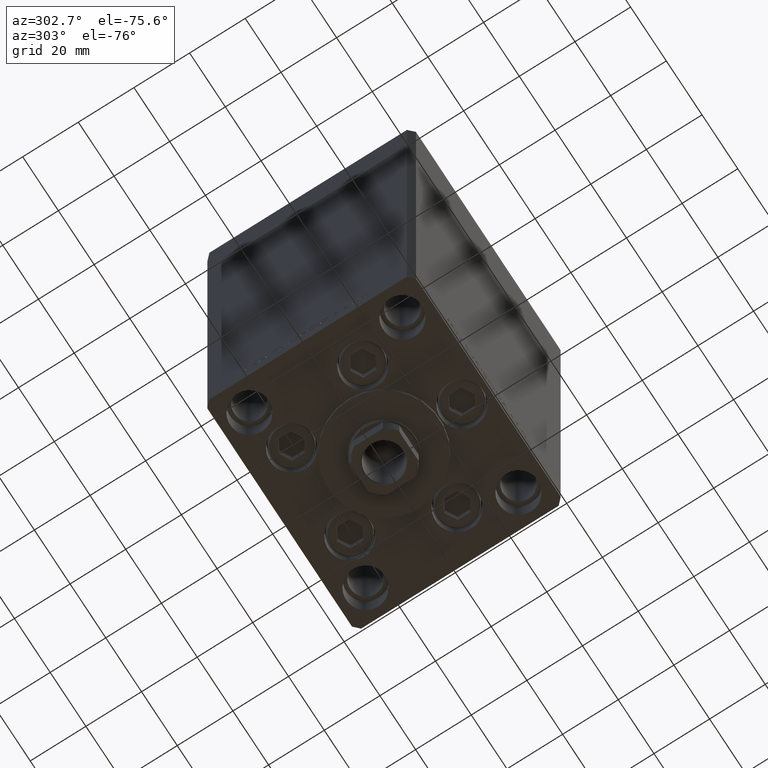
[diagram: clean part render]
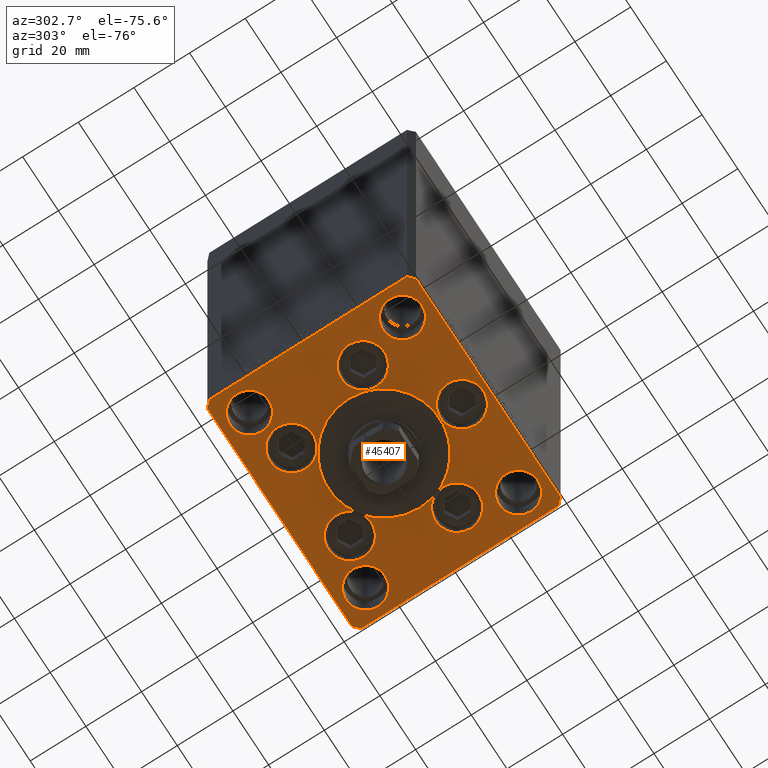
[diagram: same view with one face highlighted and labeled with its STEP entity id]
A machine part, auxiliary view. The second image highlights one B-rep face of the part: STEP entity #45407.
In plain terms, the highlighted planar face has unit normal (0, 0, -1).
Its self-contained STEP definition (entity closure, byte-faithful):
#16 = AXIS2_PLACEMENT_3D ( 'NONE', #8283, #38224, #37982 ) ;
#114 = VERTEX_POINT ( 'NONE', #25734 ) ;
#315 = ORIENTED_EDGE ( 'NONE', *, *, #40115, .T. ) ;
#346 = AXIS2_PLACEMENT_3D ( 'NONE', #21524, #39587, #13360 ) ;
#954 = FACE_BOUND ( 'NONE', #44310, .T. ) ;
#1336 = ORIENTED_EDGE ( 'NONE', *, *, #4752, .T. ) ;
#1346 = DIRECTION ( 'NONE',  ( 1.000000000000000000, 0.000000000000000000, 0.000000000000000000 ) ) ;
#1486 = VERTEX_POINT ( 'NONE', #16601 ) ;
#1607 = CARTESIAN_POINT ( 'NONE',  ( -40.50000000000000711, -37.50000000000003553, 0.000000000000000000 ) ) ;
#1820 = VERTEX_POINT ( 'NONE', #20006 ) ;
#2027 = DIRECTION ( 'NONE',  ( 0.000000000000000000, 0.000000000000000000, 1.000000000000000000 ) ) ;
#2120 = EDGE_CURVE ( 'NONE', #1820, #32465, #3324, .T. ) ;
#2234 = DIRECTION ( 'NONE',  ( 1.000000000000000000, 0.000000000000000000, 0.000000000000000000 ) ) ;
#2313 = CARTESIAN_POINT ( 'NONE',  ( 26.39865316429777664, -9.333333333333330373, 0.000000000000000000 ) ) ;
#2559 = DIRECTION ( 'NONE',  ( 0.000000000000000000, 0.000000000000000000, 1.000000000000000000 ) ) ;
#2766 = EDGE_CURVE ( 'NONE', #27767, #1486, #47745, .T. ) ;
#2904 = CARTESIAN_POINT ( 'NONE',  ( 40.50000000000000711, 37.50000000000000711, 0.000000000000000000 ) ) ;
#2972 = CARTESIAN_POINT ( 'NONE',  ( 7.750000000000000000, -28.00000000000000000, 0.000000000000000000 ) ) ;
#2993 = ORIENTED_EDGE ( 'NONE', *, *, #5865, .F. ) ;
#3050 = CARTESIAN_POINT ( 'NONE',  ( -16.32291334290544071, 22.74999999999999289, 0.000000000000000000 ) ) ;
#3070 = ORIENTED_EDGE ( 'NONE', *, *, #37310, .F. ) ;
#3206 = AXIS2_PLACEMENT_3D ( 'NONE', #16943, #32039, #47109 ) ;
#3324 = CIRCLE ( 'NONE', #29416, 20.00000000000000000 ) ;
#3429 = AXIS2_PLACEMENT_3D ( 'NONE', #47912, #28399, #17498 ) ;
#3432 = ORIENTED_EDGE ( 'NONE', *, *, #20231, .F. ) ;
#3438 = CIRCLE ( 'NONE', #22393, 7.750000000000000000 ) ;
#3773 = DIRECTION ( 'NONE',  ( 1.000000000000000000, 0.000000000000000000, 0.000000000000000000 ) ) ;
#3826 = CARTESIAN_POINT ( 'NONE',  ( -40.50000000000000711, -37.50000000000003553, 0.000000000000000000 ) ) ;
#4007 = CIRCLE ( 'NONE', #32447, 6.999999999999999112 ) ;
#4023 = DIRECTION ( 'NONE',  ( 1.000000000000000000, 0.000000000000000000, 0.000000000000000000 ) ) ;
#4265 = DIRECTION ( 'NONE',  ( 0.000000000000000000, 0.000000000000000000, 1.000000000000000000 ) ) ;
#4665 = FACE_BOUND ( 'NONE', #5611, .T. ) ;
#4752 = EDGE_CURVE ( 'NONE', #16514, #16645, #39854, .T. ) ;
#5337 = CARTESIAN_POINT ( 'NONE',  ( 42.50000000000001421, 35.50000000000002132, 0.000000000000000000 ) ) ;
#5611 = EDGE_LOOP ( 'NONE', ( #39204, #44866 ) ) ;
#5794 = CIRCLE ( 'NONE', #31979, 7.750000000000000000 ) ;
#5865 = EDGE_CURVE ( 'NONE', #22719, #114, #10524, .T. ) ;
#6660 = CARTESIAN_POINT ( 'NONE',  ( -24.07291334290544071, 22.74999999999999289, 0.000000000000000000 ) ) ;
#6854 = ORIENTED_EDGE ( 'NONE', *, *, #33197, .F. ) ;
#6952 = AXIS2_PLACEMENT_3D ( 'NONE', #2313, #2559, #32992 ) ;
#7374 = VERTEX_POINT ( 'NONE', #34662 ) ;
#7580 = CARTESIAN_POINT ( 'NONE',  ( 16.32291334290544071, 22.74999999999999289, 0.000000000000000000 ) ) ;
#7675 = EDGE_LOOP ( 'NONE', ( #26797, #2993 ) ) ;
#7921 = VERTEX_POINT ( 'NONE', #47962 ) ;
#7975 = DIRECTION ( 'NONE',  ( 1.000000000000000000, 0.000000000000000000, 0.000000000000000000 ) ) ;
#8159 = ORIENTED_EDGE ( 'NONE', *, *, #12350, .F. ) ;
#8283 = CARTESIAN_POINT ( 'NONE',  ( -32.50000000000000000, -27.50000000000000355, 0.000000000000000000 ) ) ;
#8290 = CIRCLE ( 'NONE', #47818, 20.00000000000000000 ) ;
#8522 = AXIS2_PLACEMENT_3D ( 'NONE', #9243, #20872, #9735 ) ;
#8612 = DIRECTION ( 'NONE',  ( -0.000000000000000000, 0.000000000000000000, 1.000000000000000000 ) ) ;
#8860 = VECTOR ( 'NONE', #37339, 1000.000000000000114 ) ;
#9009 = DIRECTION ( 'NONE',  ( 0.000000000000000000, 0.000000000000000000, 1.000000000000000000 ) ) ;
#9164 = AXIS2_PLACEMENT_3D ( 'NONE', #17179, #9009, #1346 ) ;
#9243 = CARTESIAN_POINT ( 'NONE',  ( 26.39865316429777664, -9.333333333333330373, 0.000000000000000000 ) ) ;
#9399 = CIRCLE ( 'NONE', #3206, 6.999999999999999112 ) ;
#9735 = DIRECTION ( 'NONE',  ( 1.000000000000000000, 0.000000000000000000, 0.000000000000000000 ) ) ;
#10139 = DIRECTION ( 'NONE',  ( 0.000000000000000000, 0.000000000000000000, 1.000000000000000000 ) ) ;
#10242 = ORIENTED_EDGE ( 'NONE', *, *, #2766, .T. ) ;
#10245 = ORIENTED_EDGE ( 'NONE', *, *, #30346, .F. ) ;
#10524 = CIRCLE ( 'NONE', #3429, 7.750000000000000000 ) ;
#10705 = ORIENTED_EDGE ( 'NONE', *, *, #2120, .F. ) ;
#11004 = CARTESIAN_POINT ( 'NONE',  ( 25.50000000000000355, 27.49999999999999645, 0.000000000000000000 ) ) ;
#11465 = DIRECTION ( 'NONE',  ( 9.773090005503134168E-17, -1.000000000000000000, 0.000000000000000000 ) ) ;
#11625 = VERTEX_POINT ( 'NONE', #34788 ) ;
#11667 = CARTESIAN_POINT ( 'NONE',  ( 0.000000000000000000, -28.00000000000000000, 0.000000000000000000 ) ) ;
#11730 = DIRECTION ( 'NONE',  ( 1.000000000000000000, 1.370645709413773283E-15, 0.000000000000000000 ) ) ;
#11743 = LINE ( 'NONE', #41943, #25168 ) ;
#12081 = FACE_BOUND ( 'NONE', #13472, .T. ) ;
#12154 = DIRECTION ( 'NONE',  ( 0.000000000000000000, 0.000000000000000000, 1.000000000000000000 ) ) ;
#12326 = PLANE ( 'NONE',  #27951 ) ;
#12344 = EDGE_CURVE ( 'NONE', #47251, #12542, #39086, .T. ) ;
#12350 = EDGE_CURVE ( 'NONE', #41710, #11625, #28006, .T. ) ;
#12542 = VERTEX_POINT ( 'NONE', #32376 ) ;
#12769 = VERTEX_POINT ( 'NONE', #39656 ) ;
#13160 = DIRECTION ( 'NONE',  ( 1.000000000000000000, 0.000000000000000000, 0.000000000000000000 ) ) ;
#13360 = DIRECTION ( 'NONE',  ( 1.000000000000000000, 0.000000000000000000, 0.000000000000000000 ) ) ;
#13472 = EDGE_LOOP ( 'NONE', ( #34398, #10705 ) ) ;
#13513 = VERTEX_POINT ( 'NONE', #25325 ) ;
#13680 = EDGE_CURVE ( 'NONE', #114, #22719, #20936, .T. ) ;
#13697 = EDGE_LOOP ( 'NONE', ( #48076, #23080 ) ) ;
#13739 = EDGE_CURVE ( 'NONE', #32465, #1820, #8290, .T. ) ;
#14299 = EDGE_CURVE ( 'NONE', #7921, #24037, #18270, .T. ) ;
#14312 = DIRECTION ( 'NONE',  ( 1.000000000000000000, 0.000000000000000000, 0.000000000000000000 ) ) ;
#14365 = EDGE_LOOP ( 'NONE', ( #47401, #8159 ) ) ;
#15220 = EDGE_CURVE ( 'NONE', #39130, #25398, #47847, .T. ) ;
#15468 = VECTOR ( 'NONE', #25940, 1000.000000000000000 ) ;
#15807 = EDGE_CURVE ( 'NONE', #38482, #38467, #40767, .T. ) ;
#16046 = FACE_BOUND ( 'NONE', #28556, .T. ) ;
#16514 = VERTEX_POINT ( 'NONE', #2904 ) ;
#16601 = CARTESIAN_POINT ( 'NONE',  ( 42.50000000000000711, -35.49999999999992895, 0.000000000000000000 ) ) ;
#16613 = CIRCLE ( 'NONE', #29280, 6.999999999999999112 ) ;
#16645 = VERTEX_POINT ( 'NONE', #25537 ) ;
#16729 = LINE ( 'NONE', #5337, #23449 ) ;
#16915 = ORIENTED_EDGE ( 'NONE', *, *, #24177, .T. ) ;
#16943 = CARTESIAN_POINT ( 'NONE',  ( -32.50000000000000000, 27.50000000000000711, 0.000000000000000000 ) ) ;
#17179 = CARTESIAN_POINT ( 'NONE',  ( 0.000000000000000000, -28.00000000000000000, 0.000000000000000000 ) ) ;
#17498 = DIRECTION ( 'NONE',  ( 1.000000000000000000, 0.000000000000000000, 0.000000000000000000 ) ) ;
#17574 = DIRECTION ( 'NONE',  ( 1.000000000000000000, 0.000000000000000000, 0.000000000000000000 ) ) ;
#17946 = CARTESIAN_POINT ( 'NONE',  ( -20.00000000000000000, -6.938893903907228378E-15, 0.000000000000000000 ) ) ;
#17950 = CARTESIAN_POINT ( 'NONE',  ( -39.50000000000000000, 27.50000000000000711, 0.000000000000000000 ) ) ;
#18017 = VECTOR ( 'NONE', #25994, 1000.000000000000000 ) ;
#18021 = VERTEX_POINT ( 'NONE', #41993 ) ;
#18091 = EDGE_CURVE ( 'NONE', #25384, #16514, #16729, .T. ) ;
#18270 = LINE ( 'NONE', #40792, #15468 ) ;
#18566 = ORIENTED_EDGE ( 'NONE', *, *, #48376, .F. ) ;
#18892 = VERTEX_POINT ( 'NONE', #17950 ) ;
#19351 = AXIS2_PLACEMENT_3D ( 'NONE', #3050, #4265, #7975 ) ;
#19360 = CARTESIAN_POINT ( 'NONE',  ( 0.000000000000000000, -6.938893903907228378E-15, 0.000000000000000000 ) ) ;
#19660 = CARTESIAN_POINT ( 'NONE',  ( -32.50000000000000000, -27.50000000000000355, 0.000000000000000000 ) ) ;
#19754 = FACE_BOUND ( 'NONE', #14365, .T. ) ;
#19942 = ORIENTED_EDGE ( 'NONE', *, *, #28442, .T. ) ;
#19953 = DIRECTION ( 'NONE',  ( 0.000000000000000000, 0.000000000000000000, 1.000000000000000000 ) ) ;
#19983 = VECTOR ( 'NONE', #28490, 1000.000000000000000 ) ;
#19994 = DIRECTION ( 'NONE',  ( 1.000000000000000000, 0.000000000000000000, 0.000000000000000000 ) ) ;
#20006 = CARTESIAN_POINT ( 'NONE',  ( 20.00000000000000000, -4.489600305612522259E-15, 0.000000000000000000 ) ) ;
#20231 = EDGE_CURVE ( 'NONE', #12769, #13513, #46425, .T. ) ;
#20752 = EDGE_CURVE ( 'NONE', #1486, #25384, #29959, .T. ) ;
#20872 = DIRECTION ( 'NONE',  ( 0.000000000000000000, 0.000000000000000000, 1.000000000000000000 ) ) ;
#20880 = VERTEX_POINT ( 'NONE', #40474 ) ;
#20936 = CIRCLE ( 'NONE', #19351, 7.750000000000000000 ) ;
#21046 = CARTESIAN_POINT ( 'NONE',  ( 40.50000000000000711, 37.50000000000000711, 0.000000000000000000 ) ) ;
#21144 = ORIENTED_EDGE ( 'NONE', *, *, #36920, .F. ) ;
#21177 = EDGE_CURVE ( 'NONE', #13513, #12769, #29112, .T. ) ;
#21248 = AXIS2_PLACEMENT_3D ( 'NONE', #7580, #35434, #33802 ) ;
#21299 = ORIENTED_EDGE ( 'NONE', *, *, #36518, .F. ) ;
#21524 = CARTESIAN_POINT ( 'NONE',  ( 32.50000000000000000, 27.49999999999999645, 0.000000000000000000 ) ) ;
#21943 = EDGE_LOOP ( 'NONE', ( #18566, #10245 ) ) ;
#21962 = CARTESIAN_POINT ( 'NONE',  ( 8.572913342905442491, 22.74999999999999289, 0.000000000000000000 ) ) ;
#22063 = VECTOR ( 'NONE', #11465, 1000.000000000000000 ) ;
#22120 = ORIENTED_EDGE ( 'NONE', *, *, #14299, .T. ) ;
#22393 = AXIS2_PLACEMENT_3D ( 'NONE', #11667, #12154, #45809 ) ;
#22496 = FACE_OUTER_BOUND ( 'NONE', #29775, .T. ) ;
#22616 = CARTESIAN_POINT ( 'NONE',  ( 42.50000000000001421, 35.50000000000002132, 0.000000000000000000 ) ) ;
#22719 = VERTEX_POINT ( 'NONE', #6660 ) ;
#23080 = ORIENTED_EDGE ( 'NONE', *, *, #15220, .F. ) ;
#23096 = CARTESIAN_POINT ( 'NONE',  ( -34.14865316429777664, -9.333333333333328596, 0.000000000000000000 ) ) ;
#23380 = EDGE_LOOP ( 'NONE', ( #33741, #3432 ) ) ;
#23449 = VECTOR ( 'NONE', #46659, 1000.000000000000000 ) ;
#23642 = ORIENTED_EDGE ( 'NONE', *, *, #12344, .F. ) ;
#24037 = VERTEX_POINT ( 'NONE', #1607 ) ;
#24177 = EDGE_CURVE ( 'NONE', #18021, #7921, #45362, .T. ) ;
#24380 = CARTESIAN_POINT ( 'NONE',  ( 25.50000000000000355, -27.50000000000000355, 0.000000000000000000 ) ) ;
#24520 = CIRCLE ( 'NONE', #16, 6.999999999999999112 ) ;
#24780 = CARTESIAN_POINT ( 'NONE',  ( 32.50000000000000000, 27.49999999999999645, 0.000000000000000000 ) ) ;
#25168 = VECTOR ( 'NONE', #39135, 1000.000000000000000 ) ;
#25267 = VERTEX_POINT ( 'NONE', #28103 ) ;
#25325 = CARTESIAN_POINT ( 'NONE',  ( 34.14865316429777664, -9.333333333333330373, 0.000000000000000000 ) ) ;
#25384 = VERTEX_POINT ( 'NONE', #22616 ) ;
#25398 = VERTEX_POINT ( 'NONE', #37707 ) ;
#25537 = CARTESIAN_POINT ( 'NONE',  ( -40.50000000000000000, 37.49999999999997158, 0.000000000000000000 ) ) ;
#25734 = CARTESIAN_POINT ( 'NONE',  ( -8.572913342905440715, 22.74999999999999289, 0.000000000000000000 ) ) ;
#25940 = DIRECTION ( 'NONE',  ( 0.7071067811865487940, -0.7071067811865463515, 0.000000000000000000 ) ) ;
#25994 = DIRECTION ( 'NONE',  ( 9.773090005503145261E-17, 1.000000000000000000, 0.000000000000000000 ) ) ;
#26535 = AXIS2_PLACEMENT_3D ( 'NONE', #34883, #31422, #41829 ) ;
#26797 = ORIENTED_EDGE ( 'NONE', *, *, #13680, .F. ) ;
#26972 = ORIENTED_EDGE ( 'NONE', *, *, #20752, .T. ) ;
#27191 = FACE_BOUND ( 'NONE', #7675, .T. ) ;
#27767 = VERTEX_POINT ( 'NONE', #31466 ) ;
#27951 = AXIS2_PLACEMENT_3D ( 'NONE', #31388, #8612, #19994 ) ;
#28006 = CIRCLE ( 'NONE', #36696, 7.750000000000000000 ) ;
#28103 = CARTESIAN_POINT ( 'NONE',  ( -39.50000000000000000, -27.50000000000000355, 0.000000000000000000 ) ) ;
#28370 = CARTESIAN_POINT ( 'NONE',  ( -32.50000000000000000, 27.50000000000000711, 0.000000000000000000 ) ) ;
#28399 = DIRECTION ( 'NONE',  ( 0.000000000000000000, 0.000000000000000000, 1.000000000000000000 ) ) ;
#28442 = EDGE_CURVE ( 'NONE', #16645, #18021, #11743, .T. ) ;
#28479 = DIRECTION ( 'NONE',  ( 0.000000000000000000, 0.000000000000000000, 1.000000000000000000 ) ) ;
#28490 = DIRECTION ( 'NONE',  ( -1.000000000000000000, -4.283267841918041508E-16, 0.000000000000000000 ) ) ;
#28556 = EDGE_LOOP ( 'NONE', ( #3070, #21299 ) ) ;
#29112 = CIRCLE ( 'NONE', #8522, 7.750000000000000000 ) ;
#29232 = ORIENTED_EDGE ( 'NONE', *, *, #18091, .T. ) ;
#29280 = AXIS2_PLACEMENT_3D ( 'NONE', #24780, #2027, #39875 ) ;
#29416 = AXIS2_PLACEMENT_3D ( 'NONE', #47678, #36548, #40755 ) ;
#29656 = CARTESIAN_POINT ( 'NONE',  ( 24.07291334290544071, 22.74999999999999289, 0.000000000000000000 ) ) ;
#29775 = EDGE_LOOP ( 'NONE', ( #22120, #315, #10242, #26972, #29232, #1336, #19942, #16915 ) ) ;
#29959 = LINE ( 'NONE', #37855, #18017 ) ;
#30346 = EDGE_CURVE ( 'NONE', #38830, #46789, #42581, .T. ) ;
#31146 = FACE_BOUND ( 'NONE', #21943, .T. ) ;
#31388 = CARTESIAN_POINT ( 'NONE',  ( 0.000000000000000000, 0.000000000000000000, 0.000000000000000000 ) ) ;
#31422 = DIRECTION ( 'NONE',  ( 0.000000000000000000, 0.000000000000000000, 1.000000000000000000 ) ) ;
#31466 = CARTESIAN_POINT ( 'NONE',  ( 40.50000000000001421, -37.49999999999992184, 0.000000000000000000 ) ) ;
#31979 = AXIS2_PLACEMENT_3D ( 'NONE', #45577, #45333, #3773 ) ;
#32039 = DIRECTION ( 'NONE',  ( 0.000000000000000000, 0.000000000000000000, 1.000000000000000000 ) ) ;
#32376 = CARTESIAN_POINT ( 'NONE',  ( 39.50000000000000000, 27.49999999999999645, 0.000000000000000000 ) ) ;
#32447 = AXIS2_PLACEMENT_3D ( 'NONE', #40081, #10139, #17574 ) ;
#32465 = VERTEX_POINT ( 'NONE', #17946 ) ;
#32992 = DIRECTION ( 'NONE',  ( 1.000000000000000000, 0.000000000000000000, 0.000000000000000000 ) ) ;
#33158 = CARTESIAN_POINT ( 'NONE',  ( -7.750000000000000000, -28.00000000000000000, 0.000000000000000000 ) ) ;
#33197 = EDGE_CURVE ( 'NONE', #20880, #18892, #9399, .T. ) ;
#33430 = CIRCLE ( 'NONE', #37381, 7.750000000000000000 ) ;
#33741 = ORIENTED_EDGE ( 'NONE', *, *, #21177, .F. ) ;
#33802 = DIRECTION ( 'NONE',  ( 1.000000000000000000, 0.000000000000000000, 0.000000000000000000 ) ) ;
#33958 = CIRCLE ( 'NONE', #37916, 6.999999999999999112 ) ;
#34229 = CARTESIAN_POINT ( 'NONE',  ( -42.50000000000000711, 35.50000000000000000, 0.000000000000000000 ) ) ;
#34398 = ORIENTED_EDGE ( 'NONE', *, *, #13739, .F. ) ;
#34662 = CARTESIAN_POINT ( 'NONE',  ( -25.50000000000000355, -27.50000000000000355, 0.000000000000000000 ) ) ;
#34745 = LINE ( 'NONE', #3826, #44377 ) ;
#34788 = CARTESIAN_POINT ( 'NONE',  ( -18.64865316429777664, -9.333333333333330373, 0.000000000000000000 ) ) ;
#34852 = FACE_BOUND ( 'NONE', #48571, .T. ) ;
#34883 = CARTESIAN_POINT ( 'NONE',  ( 32.50000000000000000, -27.50000000000000355, 0.000000000000000000 ) ) ;
#35434 = DIRECTION ( 'NONE',  ( 0.000000000000000000, 0.000000000000000000, 1.000000000000000000 ) ) ;
#35679 = DIRECTION ( 'NONE',  ( 0.000000000000000000, 0.000000000000000000, 1.000000000000000000 ) ) ;
#35730 = EDGE_CURVE ( 'NONE', #18892, #20880, #33958, .T. ) ;
#36518 = EDGE_CURVE ( 'NONE', #25267, #7374, #24520, .T. ) ;
#36548 = DIRECTION ( 'NONE',  ( 0.000000000000000000, 0.000000000000000000, 1.000000000000000000 ) ) ;
#36696 = AXIS2_PLACEMENT_3D ( 'NONE', #47255, #28479, #2234 ) ;
#36920 = EDGE_CURVE ( 'NONE', #12542, #47251, #16613, .T. ) ;
#37310 = EDGE_CURVE ( 'NONE', #7374, #25267, #41133, .T. ) ;
#37339 = DIRECTION ( 'NONE',  ( 0.7071067811865474617, 0.7071067811865474617, 0.000000000000000000 ) ) ;
#37381 = AXIS2_PLACEMENT_3D ( 'NONE', #47054, #35679, #13160 ) ;
#37568 = DIRECTION ( 'NONE',  ( 0.000000000000000000, 0.000000000000000000, 1.000000000000000000 ) ) ;
#37655 = EDGE_CURVE ( 'NONE', #25398, #39130, #4007, .T. ) ;
#37707 = CARTESIAN_POINT ( 'NONE',  ( 39.50000000000000000, -27.50000000000000355, 0.000000000000000000 ) ) ;
#37855 = CARTESIAN_POINT ( 'NONE',  ( 42.50000000000000711, -35.49999999999992895, 0.000000000000000000 ) ) ;
#37916 = AXIS2_PLACEMENT_3D ( 'NONE', #28370, #19953, #39000 ) ;
#37982 = DIRECTION ( 'NONE',  ( 1.000000000000000000, 0.000000000000000000, 0.000000000000000000 ) ) ;
#38224 = DIRECTION ( 'NONE',  ( 0.000000000000000000, 0.000000000000000000, 1.000000000000000000 ) ) ;
#38467 = VERTEX_POINT ( 'NONE', #2972 ) ;
#38482 = VERTEX_POINT ( 'NONE', #33158 ) ;
#38560 = FACE_BOUND ( 'NONE', #23380, .T. ) ;
#38830 = VERTEX_POINT ( 'NONE', #21962 ) ;
#39000 = DIRECTION ( 'NONE',  ( 1.000000000000000000, 0.000000000000000000, 0.000000000000000000 ) ) ;
#39086 = CIRCLE ( 'NONE', #346, 6.999999999999999112 ) ;
#39130 = VERTEX_POINT ( 'NONE', #24380 ) ;
#39135 = DIRECTION ( 'NONE',  ( -0.7071067811865536790, -0.7071067811865414665, 0.000000000000000000 ) ) ;
#39204 = ORIENTED_EDGE ( 'NONE', *, *, #47651, .F. ) ;
#39587 = DIRECTION ( 'NONE',  ( 0.000000000000000000, 0.000000000000000000, 1.000000000000000000 ) ) ;
#39656 = CARTESIAN_POINT ( 'NONE',  ( 18.64865316429777664, -9.333333333333328596, 0.000000000000000000 ) ) ;
#39854 = LINE ( 'NONE', #21046, #19983 ) ;
#39875 = DIRECTION ( 'NONE',  ( 1.000000000000000000, 0.000000000000000000, 0.000000000000000000 ) ) ;
#40081 = CARTESIAN_POINT ( 'NONE',  ( 32.50000000000000000, -27.50000000000000355, 0.000000000000000000 ) ) ;
#40115 = EDGE_CURVE ( 'NONE', #24037, #27767, #34745, .T. ) ;
#40306 = ORIENTED_EDGE ( 'NONE', *, *, #35730, .F. ) ;
#40474 = CARTESIAN_POINT ( 'NONE',  ( -25.50000000000000355, 27.50000000000000711, 0.000000000000000000 ) ) ;
#40755 = DIRECTION ( 'NONE',  ( 1.000000000000000000, 0.000000000000000000, 0.000000000000000000 ) ) ;
#40767 = CIRCLE ( 'NONE', #9164, 7.750000000000000000 ) ;
#40792 = CARTESIAN_POINT ( 'NONE',  ( -42.50000000000000000, -35.50000000000004263, 0.000000000000000000 ) ) ;
#41133 = CIRCLE ( 'NONE', #45050, 6.999999999999999112 ) ;
#41710 = VERTEX_POINT ( 'NONE', #23096 ) ;
#41829 = DIRECTION ( 'NONE',  ( 1.000000000000000000, 0.000000000000000000, 0.000000000000000000 ) ) ;
#41943 = CARTESIAN_POINT ( 'NONE',  ( -40.50000000000000000, 37.49999999999997158, 0.000000000000000000 ) ) ;
#41993 = CARTESIAN_POINT ( 'NONE',  ( -42.50000000000000711, 35.50000000000000000, 0.000000000000000000 ) ) ;
#42581 = CIRCLE ( 'NONE', #21248, 7.750000000000000000 ) ;
#43976 = EDGE_CURVE ( 'NONE', #11625, #41710, #33430, .T. ) ;
#44285 = CARTESIAN_POINT ( 'NONE',  ( 40.50000000000001421, -37.49999999999992184, 0.000000000000000000 ) ) ;
#44310 = EDGE_LOOP ( 'NONE', ( #6854, #40306 ) ) ;
#44377 = VECTOR ( 'NONE', #11730, 1000.000000000000000 ) ;
#44866 = ORIENTED_EDGE ( 'NONE', *, *, #15807, .F. ) ;
#45050 = AXIS2_PLACEMENT_3D ( 'NONE', #19660, #37568, #14312 ) ;
#45333 = DIRECTION ( 'NONE',  ( 0.000000000000000000, 0.000000000000000000, 1.000000000000000000 ) ) ;
#45362 = LINE ( 'NONE', #34229, #22063 ) ;
#45407 = ADVANCED_FACE ( 'NONE', ( #12081, #27191, #31146, #38560, #4665, #19754, #34852, #954, #16046, #46223, #22496 ), #12326, .T. ) ;
#45577 = CARTESIAN_POINT ( 'NONE',  ( 16.32291334290544071, 22.74999999999999289, 0.000000000000000000 ) ) ;
#45579 = DIRECTION ( 'NONE',  ( 0.000000000000000000, 0.000000000000000000, 1.000000000000000000 ) ) ;
#45809 = DIRECTION ( 'NONE',  ( 1.000000000000000000, 0.000000000000000000, 0.000000000000000000 ) ) ;
#46223 = FACE_BOUND ( 'NONE', #13697, .T. ) ;
#46425 = CIRCLE ( 'NONE', #6952, 7.750000000000000000 ) ;
#46659 = DIRECTION ( 'NONE',  ( -0.7071067811865524577, 0.7071067811865426878, 0.000000000000000000 ) ) ;
#46789 = VERTEX_POINT ( 'NONE', #29656 ) ;
#47054 = CARTESIAN_POINT ( 'NONE',  ( -26.39865316429777664, -9.333333333333330373, 0.000000000000000000 ) ) ;
#47109 = DIRECTION ( 'NONE',  ( 1.000000000000000000, 0.000000000000000000, 0.000000000000000000 ) ) ;
#47251 = VERTEX_POINT ( 'NONE', #11004 ) ;
#47255 = CARTESIAN_POINT ( 'NONE',  ( -26.39865316429777664, -9.333333333333330373, 0.000000000000000000 ) ) ;
#47401 = ORIENTED_EDGE ( 'NONE', *, *, #43976, .F. ) ;
#47651 = EDGE_CURVE ( 'NONE', #38467, #38482, #3438, .T. ) ;
#47678 = CARTESIAN_POINT ( 'NONE',  ( 0.000000000000000000, -6.938893903907228378E-15, 0.000000000000000000 ) ) ;
#47745 = LINE ( 'NONE', #44285, #8860 ) ;
#47818 = AXIS2_PLACEMENT_3D ( 'NONE', #19360, #45579, #4023 ) ;
#47847 = CIRCLE ( 'NONE', #26535, 6.999999999999999112 ) ;
#47912 = CARTESIAN_POINT ( 'NONE',  ( -16.32291334290544071, 22.74999999999999289, 0.000000000000000000 ) ) ;
#47962 = CARTESIAN_POINT ( 'NONE',  ( -42.50000000000000000, -35.50000000000004263, 0.000000000000000000 ) ) ;
#48076 = ORIENTED_EDGE ( 'NONE', *, *, #37655, .F. ) ;
#48376 = EDGE_CURVE ( 'NONE', #46789, #38830, #5794, .T. ) ;
#48571 = EDGE_LOOP ( 'NONE', ( #21144, #23642 ) ) ;